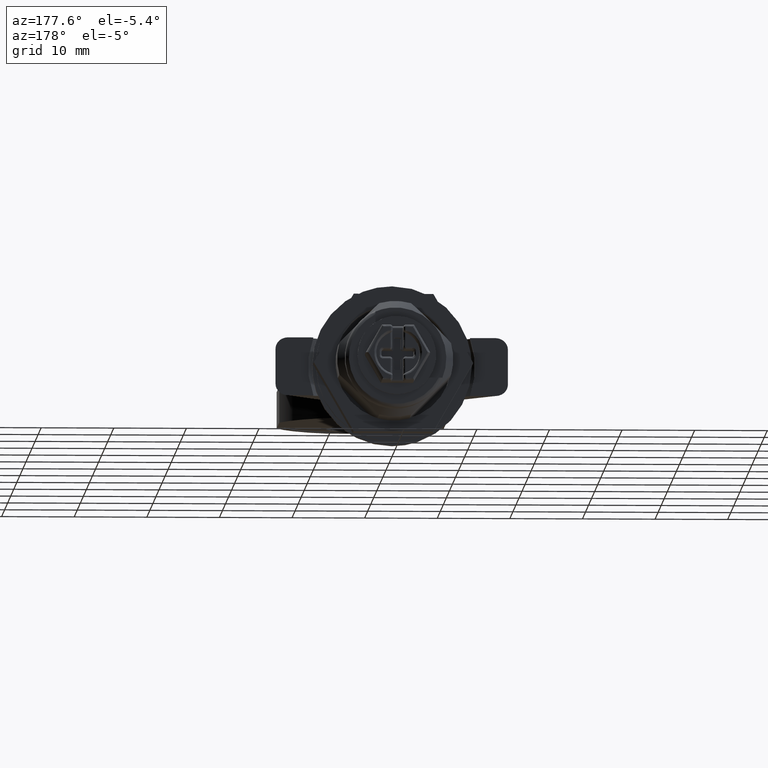
[diagram: clean part render]
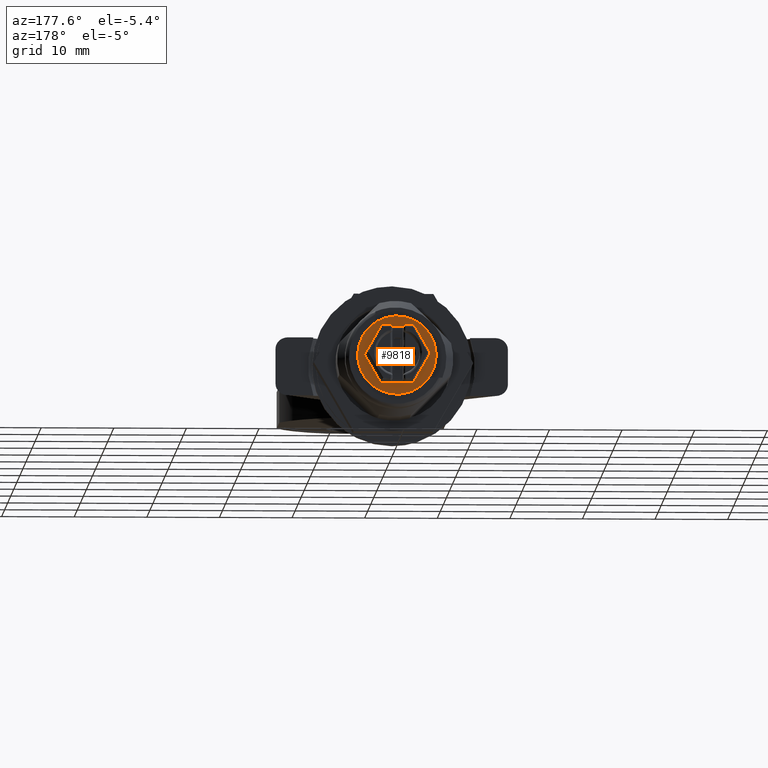
[diagram: same view with one face highlighted and labeled with its STEP entity id]
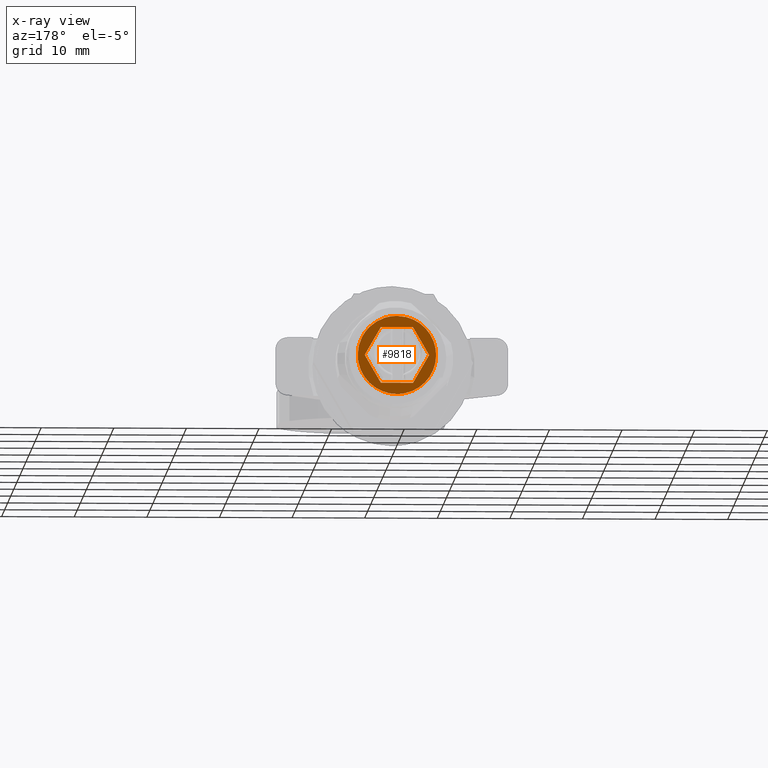
[diagram: x-ray of the same camera — body ghosted, the highlighted face saturated]
A machine part, auxiliary view. The second image highlights one B-rep face of the part: STEP entity #9818.
The next image is the same camera in x-ray: the body ghosted, the highlighted face saturated — about 0% of this face is hidden behind the body in this view.
In plain terms, the highlighted face is a freeform B-spline surface patch.
Its self-contained STEP definition (entity closure, byte-faithful):
#1461=CARTESIAN_POINT('',(16.100000380864401,1.281781925945170,5.245668378870120));
#1462=VERTEX_POINT('',#1461);
#1463=CARTESIAN_POINT('',(16.100000380864401,5.400000256486335,-0.000000902137833));
#1464=VERTEX_POINT('',#1463);
#1465=CARTESIAN_POINT('',(16.100000380864401,1.281781925945170,5.245668378870120));
#1466=CARTESIAN_POINT('',(16.100000380864429,1.845635512919974,5.108277529428741));
#1467=CARTESIAN_POINT('',(16.100000380864451,2.700876706479396,4.745145433399014));
#1468=CARTESIAN_POINT('',(16.100000380864280,3.669538111178877,4.000020801796072));
#1469=CARTESIAN_POINT('',(16.100000380864689,4.377597028032822,3.222088939538240));
#1470=CARTESIAN_POINT('',(16.100000380864120,4.881990024952491,2.382137314927474));
#1471=CARTESIAN_POINT('',(16.100000380864579,5.291410278077698,1.272792001307686));
#1472=CARTESIAN_POINT('',(16.100000380864181,5.400187301271706,0.505444532591695));
#1473=CARTESIAN_POINT('',(16.100000380864401,5.400000256486335,-0.000000902137833));
#1474=B_SPLINE_CURVE_WITH_KNOTS('',3,(#1465,#1466,#1467,#1468,#1469,#1470,#1471,#1472,#1473),.UNSPECIFIED.,.F.,.U.,(4,1,1,1,1,1,4),(0.000000069234024,1.740891530229265,2.751744149637859,3.650228286827515,4.885727143980430,5.671943852298108,7.188199420438695),.UNSPECIFIED.);
#1475=EDGE_CURVE('',#1462,#1464,#1474,.T.);
#1477=CARTESIAN_POINT('',(16.100000380864401,0.0,-5.400000256486410));
#1478=VERTEX_POINT('',#1477);
#1479=CARTESIAN_POINT('',(16.100000380864401,5.400000256486335,-0.000000902137833));
#1480=CARTESIAN_POINT('',(16.100000380864419,5.400084981553684,-0.397617308192443));
#1481=CARTESIAN_POINT('',(16.100000380864429,5.333808078391813,-0.993988981101492));
#1482=CARTESIAN_POINT('',(16.100000380864230,5.080499607380583,-1.887971545740292));
#1483=CARTESIAN_POINT('',(16.100000380864540,4.715990138230772,-2.696973623690530));
#1484=CARTESIAN_POINT('',(16.100000380864518,4.140823810885955,-3.513569591135124));
#1485=CARTESIAN_POINT('',(16.100000380864181,3.347440836366268,-4.287802340539856));
#1486=CARTESIAN_POINT('',(16.100000380864969,2.313333343833189,-4.942794472232064));
#1487=CARTESIAN_POINT('',(16.100000380863889,1.126557088947466,-5.326663675173532));
#1488=CARTESIAN_POINT('',(16.100000380864710,0.331336334383328,-5.400015718409708));
#1489=CARTESIAN_POINT('',(16.100000380864401,0.0,-5.400000256486410));
#1490=B_SPLINE_CURVE_WITH_KNOTS('',3,(#1479,#1480,#1481,#1482,#1483,#1484,#1485,#1486,#1487,#1488,#1489),.UNSPECIFIED.,.F.,.U.,(4,1,1,1,1,1,1,1,4),(0.000000087635172,1.192830837590297,1.789241370515937,2.783284243765210,3.843595221886989,4.771320861718954,6.096686716535933,7.488336640542590,8.482353281957176),.UNSPECIFIED.);
#1491=EDGE_CURVE('',#1464,#1478,#1490,.T.);
#1493=CARTESIAN_POINT('',(16.100000380864390,-5.400000256486335,0.000000902137826));
#1494=VERTEX_POINT('',#1493);
#1495=CARTESIAN_POINT('',(16.100000380864401,0.0,-5.400000256486410));
#1496=CARTESIAN_POINT('',(16.100000380864390,-0.596475874651227,-5.400411408162597));
#1497=CARTESIAN_POINT('',(16.100000380864412,-1.479765612356468,-5.252042891479102));
#1498=CARTESIAN_POINT('',(16.100000380864412,-2.657950757555557,-4.738351957055838));
#1499=CARTESIAN_POINT('',(16.100000380864369,-3.610982922359848,-4.084658481428182));
#1500=CARTESIAN_POINT('',(16.100000380864412,-4.338900021757731,-3.271494128646915));
#1501=CARTESIAN_POINT('',(16.100000380864390,-4.873571619740420,-2.379270329515598));
#1502=CARTESIAN_POINT('',(16.100000380864479,-5.277510697182572,-1.369455703281700));
#1503=CARTESIAN_POINT('',(16.100000380864330,-5.400176659802418,-0.508069821628022));
#1504=CARTESIAN_POINT('',(16.100000380864390,-5.400000256486335,0.000000902137826));
#1505=B_SPLINE_CURVE_WITH_KNOTS('',3,(#1495,#1496,#1497,#1498,#1499,#1500,#1501,#1502,#1503,#1504),.UNSPECIFIED.,.F.,.U.,(4,1,1,1,1,1,1,4),(0.000000087323444,1.789241584754113,2.650738785069502,3.843595682310610,5.235193967256013,5.897878873921346,6.958182778362790,8.482354298883120),.UNSPECIFIED.);
#1506=EDGE_CURVE('',#1478,#1494,#1505,.T.);
#1508=CARTESIAN_POINT('',(16.100000380864380,-3.784910398526722,3.851552736310227));
#1509=VERTEX_POINT('',#1508);
#1510=CARTESIAN_POINT('',(16.100000380864390,-5.400000256486335,0.000000902137826));
#1511=CARTESIAN_POINT('',(16.100000380864380,-5.400113807639096,0.446710626246926));
#1512=CARTESIAN_POINT('',(16.100000380864419,-5.319157023682023,1.094356748072108));
#1513=CARTESIAN_POINT('',(16.100000380864280,-5.004447791102877,2.097544022077786));
#1514=CARTESIAN_POINT('',(16.100000380864589,-4.555276134391091,2.978492398020780));
#1515=CARTESIAN_POINT('',(16.100000380864291,-4.055762943377839,3.585460519292775));
#1516=CARTESIAN_POINT('',(16.100000380864380,-3.784910398526722,3.851552736310227));
#1517=B_SPLINE_CURVE_WITH_KNOTS('',3,(#1510,#1511,#1512,#1513,#1514,#1515,#1516),.UNSPECIFIED.,.F.,.U.,(4,1,1,1,4),(0.000000023133631,1.340095175068688,1.943147892417613,3.149220244764472,4.288300824567084),.UNSPECIFIED.);
#1518=EDGE_CURVE('',#1494,#1509,#1517,.T.);
#1607=CARTESIAN_POINT('',(16.100000380864401,0.0,5.400000256486410));
#1608=VERTEX_POINT('',#1607);
#1609=CARTESIAN_POINT('',(16.100000380864401,0.0,5.400000256486410));
#1610=CARTESIAN_POINT('',(16.100000380864369,0.431382986549648,5.400050762356835));
#1611=CARTESIAN_POINT('',(16.100000380864412,0.862741345821030,5.348135761371843));
#1612=CARTESIAN_POINT('',(16.100000380864401,1.281781925945170,5.245668378870120));
#1613=B_SPLINE_CURVE_WITH_KNOTS('',3,(#1609,#1610,#1611,#1612),.UNSPECIFIED.,.F.,.U.,(4,4),(2.457728E-009,1.294146454596883),.UNSPECIFIED.);
#1614=EDGE_CURVE('',#1608,#1462,#1613,.T.);
#1637=CARTESIAN_POINT('',(16.100000380864380,-3.784910398526722,3.851552736310227));
#1638=CARTESIAN_POINT('',(16.100000380864401,-3.488932054015115,4.142505952772758));
#1639=CARTESIAN_POINT('',(16.100000380864351,-2.812117034799464,4.669173792714130));
#1640=CARTESIAN_POINT('',(16.100000380864479,-1.528969346528006,5.249623267038991));
#1641=CARTESIAN_POINT('',(16.100000380864351,-0.546114410517486,5.400238896627569));
#1642=CARTESIAN_POINT('',(16.100000380864401,0.0,5.400000256486410));
#1643=B_SPLINE_CURVE_WITH_KNOTS('',3,(#1637,#1638,#1639,#1640,#1641,#1642),.UNSPECIFIED.,.F.,.U.,(4,1,1,4),(0.000000024022262,1.245112354031324,2.555748845411613,4.194052260450315),.UNSPECIFIED.);
#1644=EDGE_CURVE('',#1509,#1608,#1643,.T.);
#6663=CARTESIAN_POINT('',(16.100000380864451,2.217500105325770,3.840822848213405));
#6664=VERTEX_POINT('',#6663);
#6671=CARTESIAN_POINT('',(16.100000380864401,4.435000210651594,-8.586881E-014));
#6672=VERTEX_POINT('',#6671);
#6678=CARTESIAN_POINT('',(16.100000380864401,4.435000210651594,-8.586881E-014));
#6679=CARTESIAN_POINT('',(16.100000380864451,2.217500105325770,3.840822848213405));
#6680=QUASI_UNIFORM_CURVE('',1,(#6678,#6679),.UNSPECIFIED.,.F.,.U.);
#6681=EDGE_CURVE('',#6672,#6664,#6680,.T.);
#6693=CARTESIAN_POINT('',(16.100000380864451,2.217500105325600,-3.840822848213295));
#6694=VERTEX_POINT('',#6693);
#6700=CARTESIAN_POINT('',(16.100000380864451,2.217500105325600,-3.840822848213295));
#6701=CARTESIAN_POINT('',(16.100000380864401,4.435000210651594,-8.586881E-014));
#6702=QUASI_UNIFORM_CURVE('',1,(#6700,#6701),.UNSPECIFIED.,.F.,.U.);
#6703=EDGE_CURVE('',#6694,#6672,#6702,.T.);
#6715=CARTESIAN_POINT('',(16.100000380864451,-2.217500105325710,-3.840822848213405));
#6716=VERTEX_POINT('',#6715);
#6722=CARTESIAN_POINT('',(16.100000380864451,-2.217500105325710,-3.840822848213405));
#6723=CARTESIAN_POINT('',(16.100000380864451,2.217500105325600,-3.840822848213295));
#6724=QUASI_UNIFORM_CURVE('',1,(#6722,#6723),.UNSPECIFIED.,.F.,.U.);
#6725=EDGE_CURVE('',#6716,#6694,#6724,.T.);
#6741=CARTESIAN_POINT('',(16.100000380864451,-4.435000210651539,1.989520E-013));
#6742=VERTEX_POINT('',#6741);
#6748=CARTESIAN_POINT('',(16.100000380864451,-4.435000210651539,1.989520E-013));
#6749=CARTESIAN_POINT('',(16.100000380864451,-2.217500105325710,-3.840822848213405));
#6750=QUASI_UNIFORM_CURVE('',1,(#6748,#6749),.UNSPECIFIED.,.F.,.U.);
#6751=EDGE_CURVE('',#6742,#6716,#6750,.T.);
#6763=CARTESIAN_POINT('',(16.100000380864451,-2.217500105325825,3.840822848213405));
#6764=VERTEX_POINT('',#6763);
#6770=CARTESIAN_POINT('',(16.100000380864451,-2.217500105325825,3.840822848213405));
#6771=CARTESIAN_POINT('',(16.100000380864451,-4.435000210651539,1.989520E-013));
#6772=QUASI_UNIFORM_CURVE('',1,(#6770,#6771),.UNSPECIFIED.,.F.,.U.);
#6773=EDGE_CURVE('',#6764,#6742,#6772,.T.);
#6790=CARTESIAN_POINT('',(16.100000380864451,2.217500105325770,3.840822848213405));
#6791=CARTESIAN_POINT('',(16.100000380864451,-2.217500105325825,3.840822848213405));
#6792=QUASI_UNIFORM_CURVE('',1,(#6790,#6791),.UNSPECIFIED.,.F.,.U.);
#6793=EDGE_CURVE('',#6664,#6764,#6792,.T.);
#9797=CARTESIAN_POINT('',(16.100000380864401,-5.939460121208957,5.939460121209040));
#9798=CARTESIAN_POINT('',(16.100000380864401,-5.939460121208957,-5.939459734970924));
#9799=CARTESIAN_POINT('',(16.100000380864401,5.939459734970839,5.939460121209040));
#9800=CARTESIAN_POINT('',(16.100000380864401,5.939459734970839,-5.939459734970924));
#9801=B_SPLINE_SURFACE_WITH_KNOTS('',1,1,((#9797,#9799),(#9798,#9800)),.UNSPECIFIED.,.F.,.F.,.U.,(2,2),(2,2),(0.0,11.878919856179960),(0.0,11.878919856179801),.UNSPECIFIED.);
#9802=ORIENTED_EDGE('',*,*,#1644,.F.);
#9803=ORIENTED_EDGE('',*,*,#1518,.F.);
#9804=ORIENTED_EDGE('',*,*,#1506,.F.);
#9805=ORIENTED_EDGE('',*,*,#1491,.F.);
#9806=ORIENTED_EDGE('',*,*,#1475,.F.);
#9807=ORIENTED_EDGE('',*,*,#1614,.F.);
#9808=EDGE_LOOP('',(#9802,#9803,#9804,#9805,#9806,#9807));
#9809=FACE_OUTER_BOUND('',#9808,.T.);
#9810=ORIENTED_EDGE('',*,*,#6773,.F.);
#9811=ORIENTED_EDGE('',*,*,#6793,.F.);
#9812=ORIENTED_EDGE('',*,*,#6681,.F.);
#9813=ORIENTED_EDGE('',*,*,#6703,.F.);
#9814=ORIENTED_EDGE('',*,*,#6725,.F.);
#9815=ORIENTED_EDGE('',*,*,#6751,.F.);
#9816=EDGE_LOOP('',(#9810,#9811,#9812,#9813,#9814,#9815));
#9817=FACE_BOUND('',#9816,.T.);
#9818=ADVANCED_FACE('',(#9809,#9817),#9801,.T.);